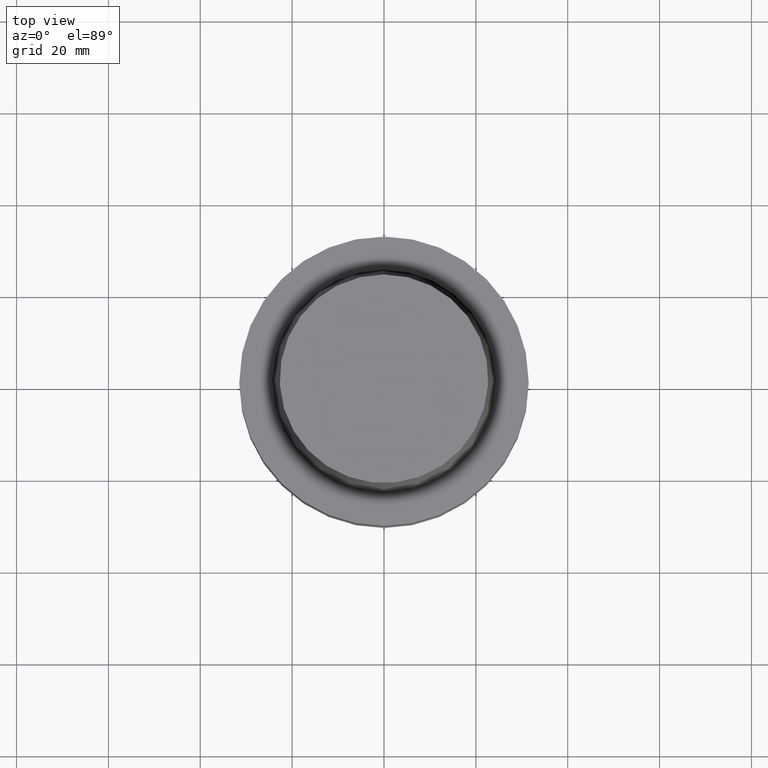
[diagram: clean part render]
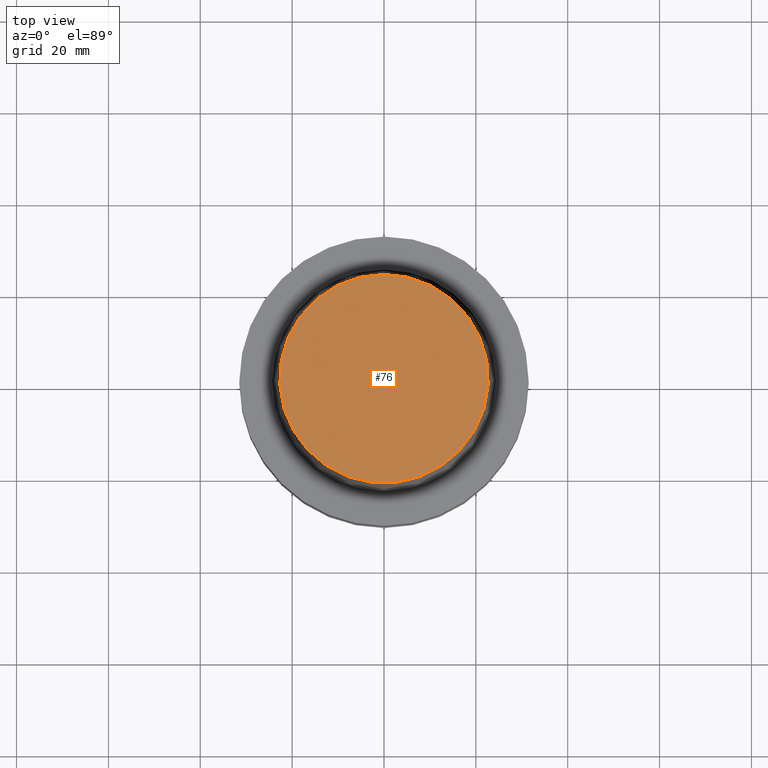
[diagram: same view with one face highlighted and labeled with its STEP entity id]
A machine part, top view. The second image highlights one B-rep face of the part: STEP entity #76.
In plain terms, the highlighted planar face has unit normal (-0, 0, 1).
Its self-contained STEP definition (entity closure, byte-faithful):
#76=ADVANCED_FACE('',(#95),#96,.T.);
#95=FACE_OUTER_BOUND('',#144,.T.);
#96=PLANE('',#145);
#144=EDGE_LOOP('',(#195));
#145=AXIS2_PLACEMENT_3D('',#196,#197,#198);
#195=ORIENTED_EDGE('',*,*,#275,.F.);
#196=CARTESIAN_POINT('',(-1.95943487863577E-015,11.3574999984407,32.0));
#197=DIRECTION('',(-6.12323399573677E-017,5.03150759977538E-016,1.0));
#198=DIRECTION('',(-2.59819456539835E-032,-1.0,5.03150759977538E-016));
#275=EDGE_CURVE('',#292,#292,#293,.T.);
#292=VERTEX_POINT('',#324);
#293=CIRCLE('',#325,22.7149999968815);
#324=CARTESIAN_POINT('',(-1.95943487863577E-015,22.7149999968815,32.0));
#325=AXIS2_PLACEMENT_3D('',#357,#358,#359);
#357=CARTESIAN_POINT('',(-1.95943487863577E-015,-3.91886975727153E-015,32.0));
#358=DIRECTION('',(6.12323399573677E-017,1.22464679914735E-016,-1.0));
#359=DIRECTION('',(-1.23259516440783E-032,1.0,1.22464679914735E-016));